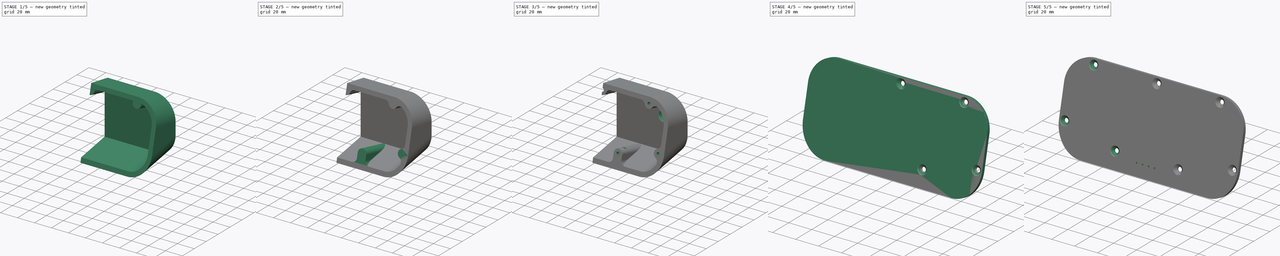
[diagram: build sequence overview — one tinted view per stage of 5, left to right]
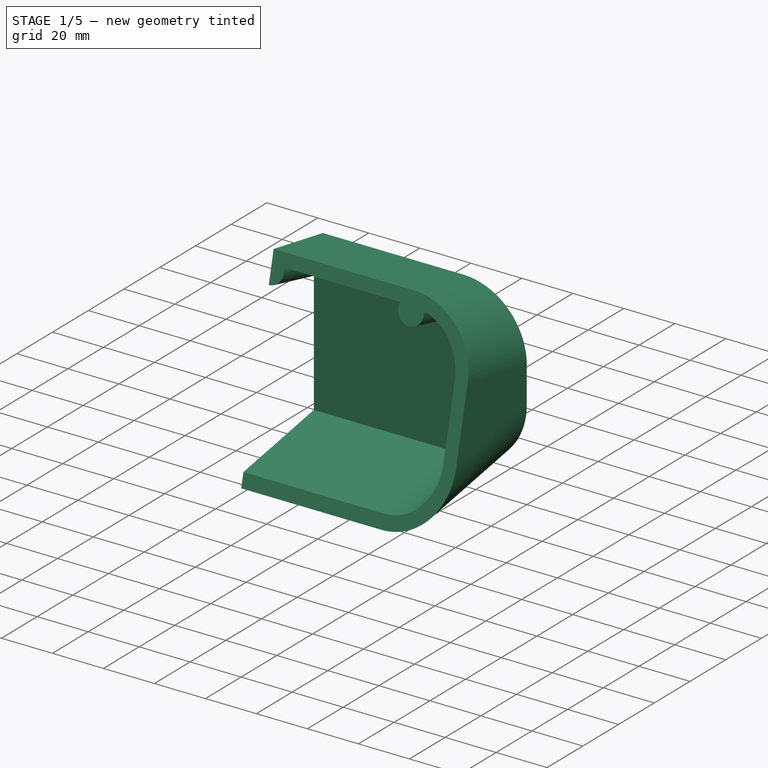
[diagram: stage 1 of 5 — iso view after this stage's code; geometry added in this stage tinted green]
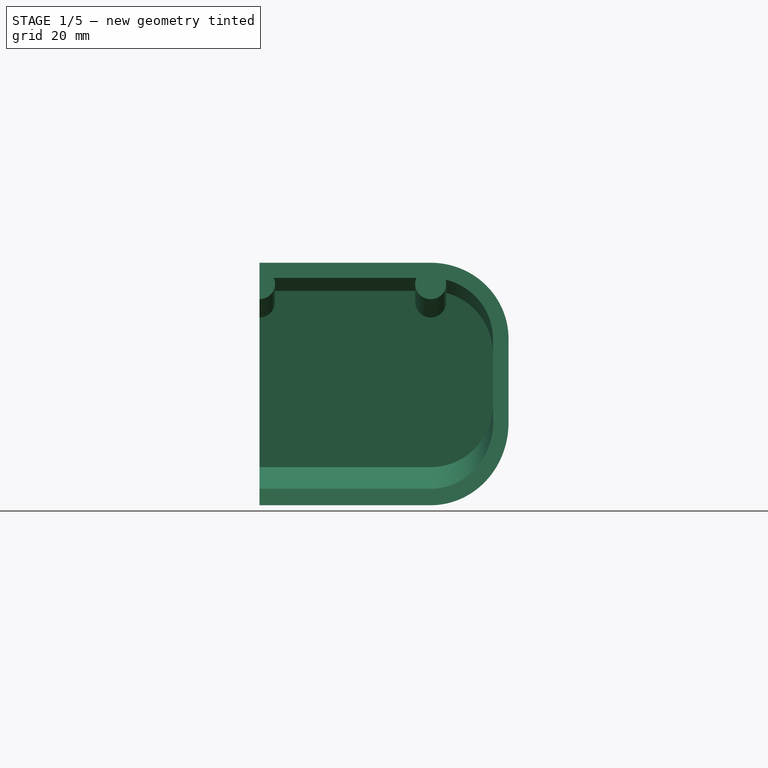
[diagram: stage 1 of 5 — front view after this stage's code; geometry added in this stage tinted green]
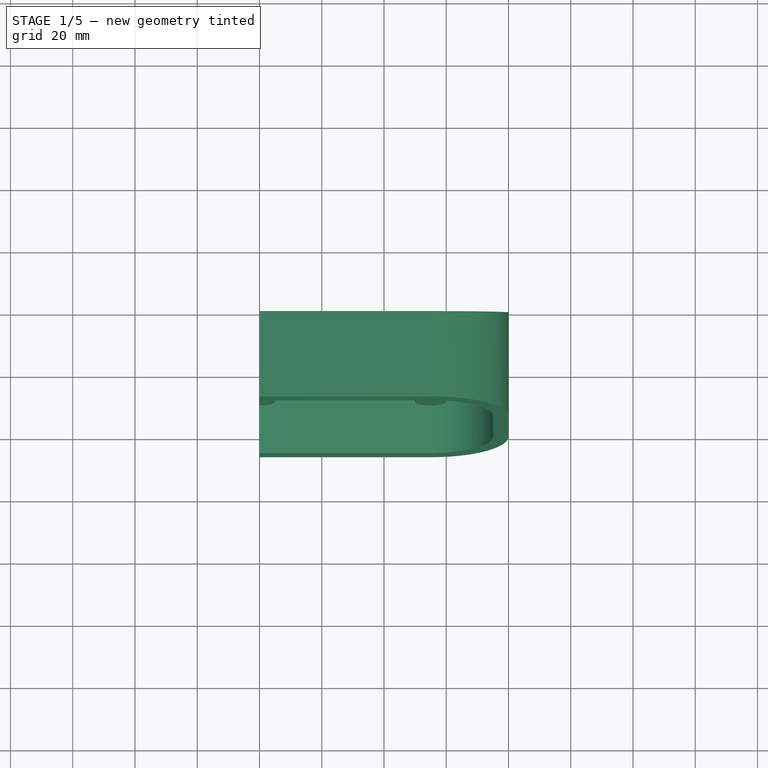
[diagram: stage 1 of 5 — top view after this stage's code; geometry added in this stage tinted green]
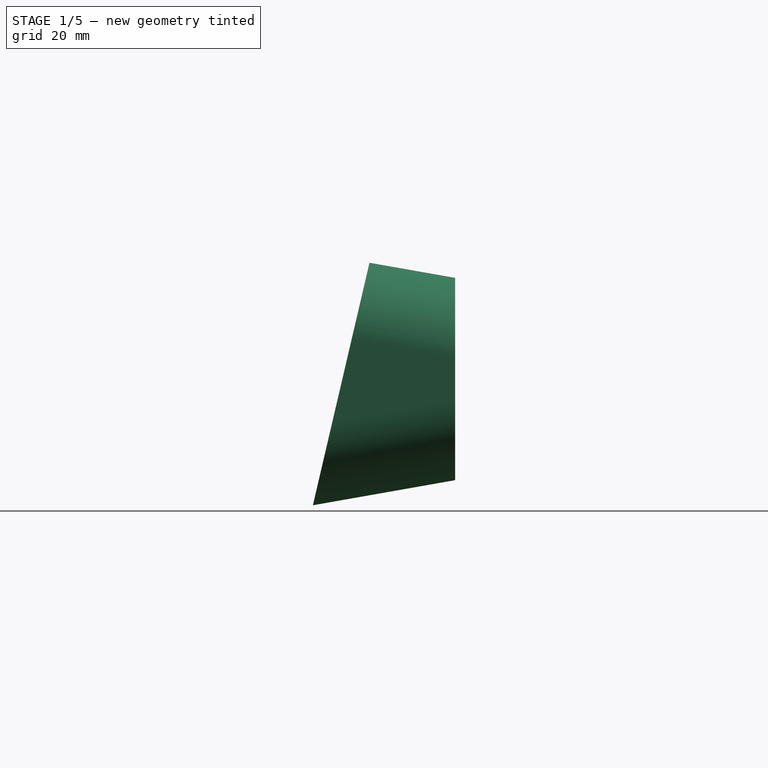
[diagram: stage 1 of 5 — right view after this stage's code; geometry added in this stage tinted green]
FCSTD DOCUMENT  (FreeCAD 0.21R33668 +7 (Git))
Label: wall-mount
License: All rights reserved
LicenseURL: http://en.wikipedia.org/wiki/All_rights_reserved
objects: Sketcher::SketchObject×11, PartDesign::Pad×6, PartDesign::Pocket×5, PartDesign::SubShapeBinder×4, PartDesign::Hole×3, PartDesign::Fillet×2, PartDesign::Mirrored×2, PartDesign::Body×2, PartDesign::Thickness×1
note: 53 computed .brp shape members not serialized (recipe doc carries the construction recipe); baked Part::Feature solids carry a one-line shape summary decoded from their .brp

FEATURE [Sketcher::SketchObject] Sketch
  FullyConstrained = true
  MapMode = 5
  Placement = pos=(0,0,0) rot=(0.57735,0.57735,0.57735;2.0944rad)
  Support = -> [YZ_Plane]
  sketch-geometry (6):
    g0: LineSegment StartX=0 StartY=-3.62973 StartZ=0 EndX=0 EndY=61.3703 EndZ=0
    g1: LineSegment StartX=0 StartY=-3.62973 StartZ=0 EndX=-45.6885 EndY=-11.6859 EndZ=0
    g2: LineSegment StartX=-45.6885 StartY=-11.6859 StartZ=0 EndX=-27.5033 EndY=66.2198 EndZ=0
    g3: LineSegment StartX=-27.5033 StartY=66.2198 StartZ=0 EndX=0 EndY=61.3703 EndZ=0
    g4: LineSegment StartX=-48.6436 StartY=-24.3455 StartZ=0 EndX=-10 EndY=141.204 EndZ=0
    g5: GeomPoint X=-42.9607 Y=0 Z=0
  constraints (19):
    c: PointOnObject(g0,g-2)
    c: PointOnObject(g0,g-2)
    c: Coincident(g1,g0)
    c: Coincident(g2,g1)
    c: Coincident(g3,g2)
    c: Coincident(g3,g0)
    c: Distance(g2) = 80
    c: Distance(g0) = 65
    c: Angle(g0,g1) = 1.74533
    c: Angle(g3,g0) = 1.74533
    c: PointOnObject(g1,g4)
    c: PointOnObject(g2,g4)
    c: PointOnObject(g5,g4)
    c: PointOnObject(g5,g-1)
    c: DistanceX(g4,g-1) = 10
    c: Distance(g5,g4) = 25
    c: Distance(g1,g5) = 12
    c: Distance(g4,g4) = 170
    c: Angle(g2,g-2) = 0.22932
FEATURE [PartDesign::Pad] Pad
  Direction = (1,-2e-16,3e-16)
  Length = 80
  Length2 = 10
  Placement = pos=(0,0,0) rot=(0.57735,0.57735,0.57735;2.0944rad)
  Profile = -> Sketch
  ReferenceAxis = -> Sketch [N_Axis]
  Type = 0
FEATURE [PartDesign::Fillet] Fillet
  Base = -> Pad [Edge12,Edge7]
  BaseFeature = -> Pad
  Placement = pos=(0,0,0) rot=(0.57735,0.57735,0.57735;2.0944rad)
  Radius = 25
  SupportTransform = false
  UseAllEdges = false
FEATURE [PartDesign::Thickness] Thickness
  Base = -> Fillet [Face4,Face8]
  BaseFeature = -> Fillet
  Intersection = false
  Join = 0
  Mode = 0
  Reversed = true
  SupportTransform = false
  Value = 5
FEATURE [PartDesign::Pad] Pad001
  BaseFeature = -> Thickness
  Direction = (-5e-16,-0.973821,0.227315)
  Length = 10
  Length2 = 10
  Profile = -> Sketch001
  ReferenceAxis = -> Sketch001 [N_Axis]
  Refine = true
  Reversed = true
  Type = 3
  UpToFace = -> Thickness [Face9]
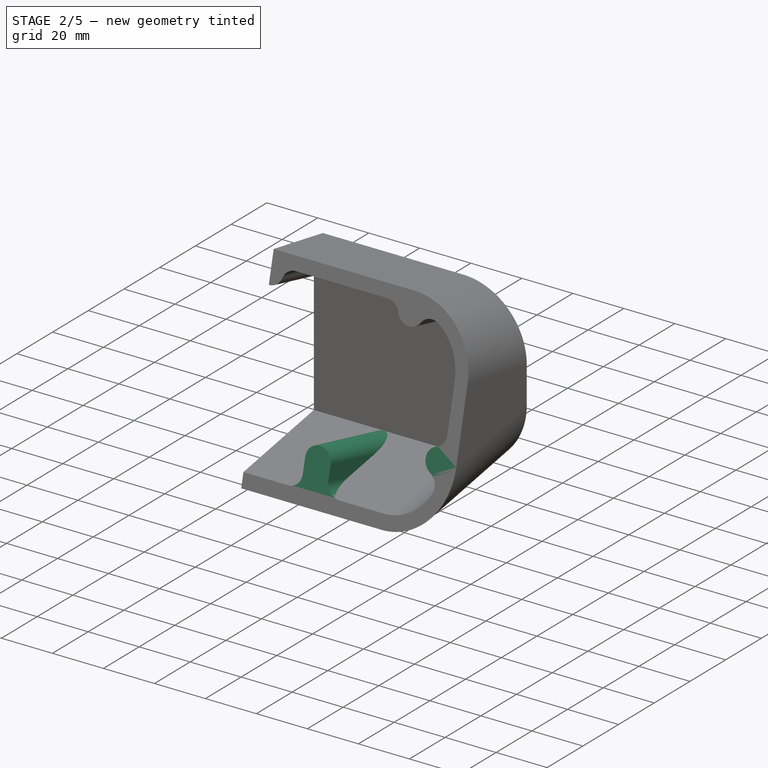
[diagram: stage 2 of 5 — iso view after this stage's code; geometry added in this stage tinted green]
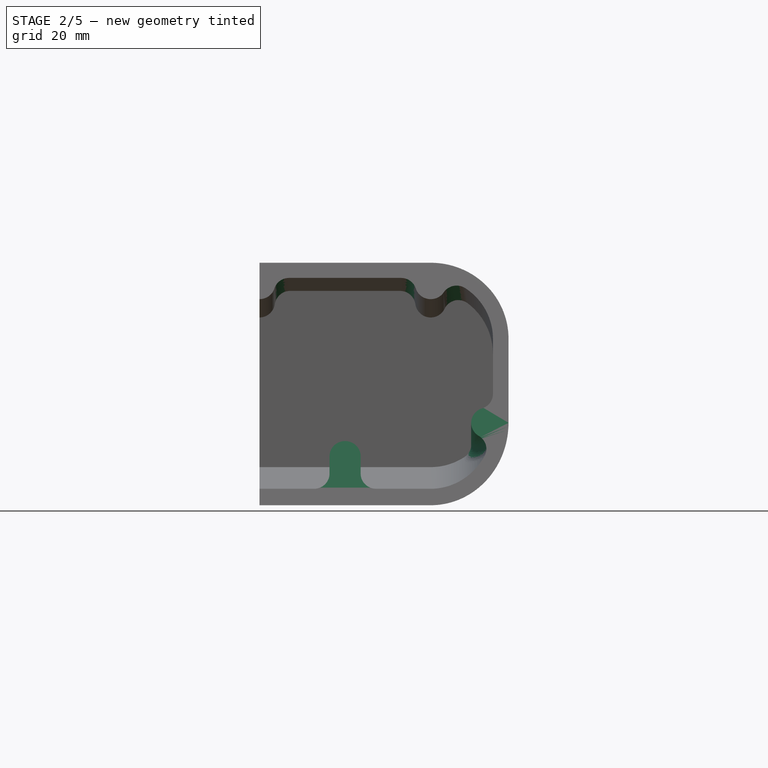
[diagram: stage 2 of 5 — front view after this stage's code; geometry added in this stage tinted green]
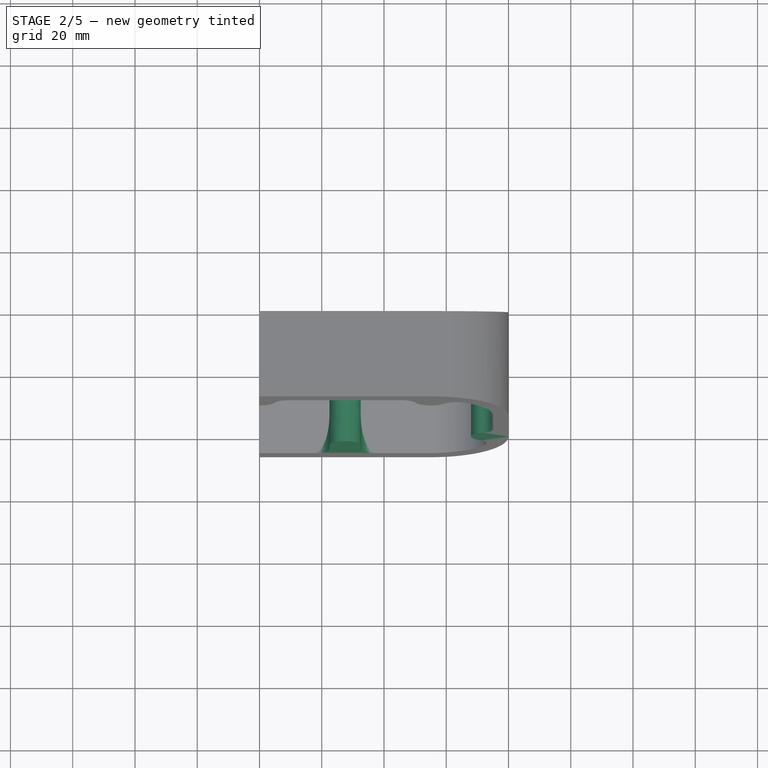
[diagram: stage 2 of 5 — top view after this stage's code; geometry added in this stage tinted green]
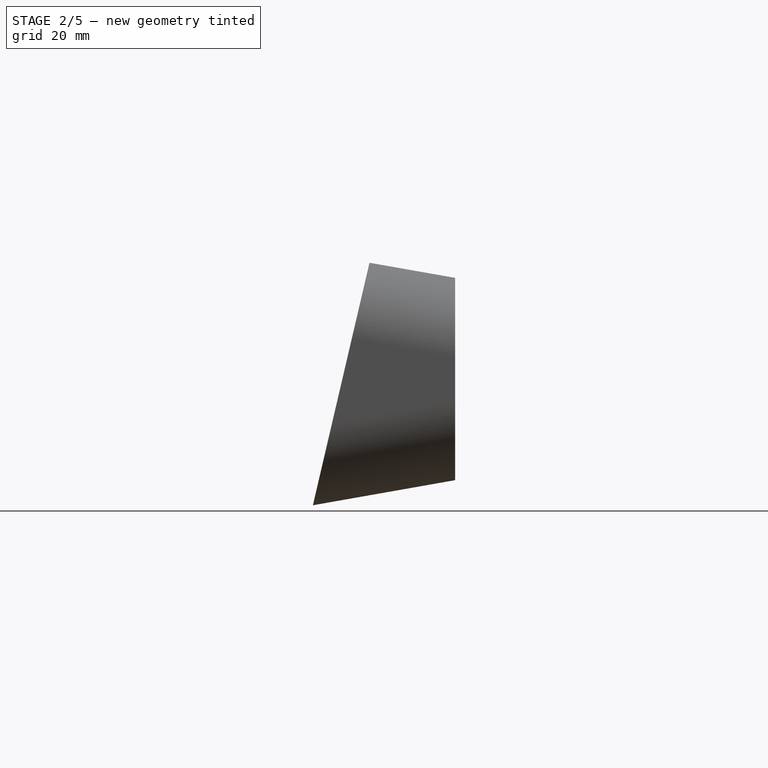
[diagram: stage 2 of 5 — right view after this stage's code; geometry added in this stage tinted green]
FEATURE [Sketcher::SketchObject] Sketch002
  ExternalGeometry = -> [Pad001]
  FullyConstrained = true
  MapMode = 5
  Placement = pos=(-1.9e-14,-40.7409,9.50999) rot=(1,0,0;1.34148rad)
  sketch-geometry (7):
    g0: GeomPoint X=27.5 Y=-16.3282 Z=0
    g1: ArcOfCircle CenterX=27.5 CenterY=-5.58562 CenterZ=0 NormalX=0 NormalY=0 NormalZ=1 AngleXU=0 Radius=5 StartAngle=0 EndAngle=3.14159
    g2: LineSegment StartX=22.5 StartY=-5.58562 StartZ=0 EndX=22.5 EndY=-11.3282 EndZ=0
    g3: LineSegment StartX=32.5 StartY=-11.3282 StartZ=0 EndX=32.5 EndY=-5.58562 EndZ=0
    g4: ArcOfCircle CenterX=37.5 CenterY=-11.3282 CenterZ=0 NormalX=0 NormalY=0 NormalZ=1 AngleXU=0 Radius=5 StartAngle=3.14159 EndAngle=4.71239
    g5: ArcOfCircle CenterX=17.5 CenterY=-11.3282 CenterZ=0 NormalX=0 NormalY=0 NormalZ=1 AngleXU=0 Radius=5 StartAngle=4.71239 EndAngle=6.28319
    g6: LineSegment StartX=17.5 StartY=-16.3282 StartZ=0 EndX=37.5 EndY=-16.3282 EndZ=0
  constraints (16):
    c: Symmetric(g-3,g-3,g0)
    c: Vertical(g2)
    c: Vertical(g3)
    c: Vertical(g0,g1)
    c: Tangent(g3,g1) = -1.5708
    c: Tangent(g2,g1) = -1.5708
    c: Tangent(g2,g5) = 1.5708
    c: Tangent(g3,g4) = 1.5708
    c: Tangent(g5,g-3) = 1.5708
    c: Tangent(g4,g-3) = 1.5708
    c: Coincident(g6,g5)
    c: Tangent(g1,g-4)
    c: Equal(g-5,g1)
    c: Equal(g5,g4)
    c: Radius(g5) = 5
    c: Coincident(g4,g6)
FEATURE [Sketcher::SketchObject] Sketch008
  ExternalGeometry = -> [Binder,Pad001]
  FullyConstrained = true
  MapMode = 5
  Placement = pos=(-1.97e-14,-40.7409,9.50999) rot=(1,0,0;1.34148rad)
  Support = -> [Pad001]
  sketch-geometry (1):
    g0: Circle CenterX=73 CenterY=5.42146 CenterZ=0 NormalX=0 NormalY=0 NormalZ=1 AngleXU=0 Radius=5
  constraints (2):
    c: Equal(g-4,g0)
    c: Coincident(g-3,g0)
FEATURE [PartDesign::Pad] Pad006
  BaseFeature = -> Pad001
  Direction = (-5e-16,-0.973821,0.227315)
  Length = 20
  Length2 = 10
  Profile = -> Sketch008
  ReferenceAxis = -> Sketch008 [N_Axis]
  Refine = true
  Reversed = true
  Type = 0
FEATURE [PartDesign::Pad] Pad007
  BaseFeature = -> Pad006
  Direction = (0,0.973821,-0.227315)
  Length = 10
  Length2 = 10
  Profile = -> Pad006 [Face6]
  Type = 3
  UpToFace = -> Pad006 [Face4]
FEATURE [PartDesign::Pad] Pad002
  BaseFeature = -> Pad007
  Direction = (0,-0.973821,0.227315)
  Length = 10
  Length2 = 10
  Profile = -> Sketch002
  ReferenceAxis = -> Sketch002 [N_Axis]
  Refine = true
  Reversed = true
  Type = 2
FEATURE [PartDesign::Fillet] Fillet002
  Base = -> Pad002 [Edge36,Edge39,Edge37,Edge26,Edge27,Edge47,Edge48,Edge45]
  BaseFeature = -> Pad002
  Radius = 5
  SupportTransform = false
  UseAllEdges = false
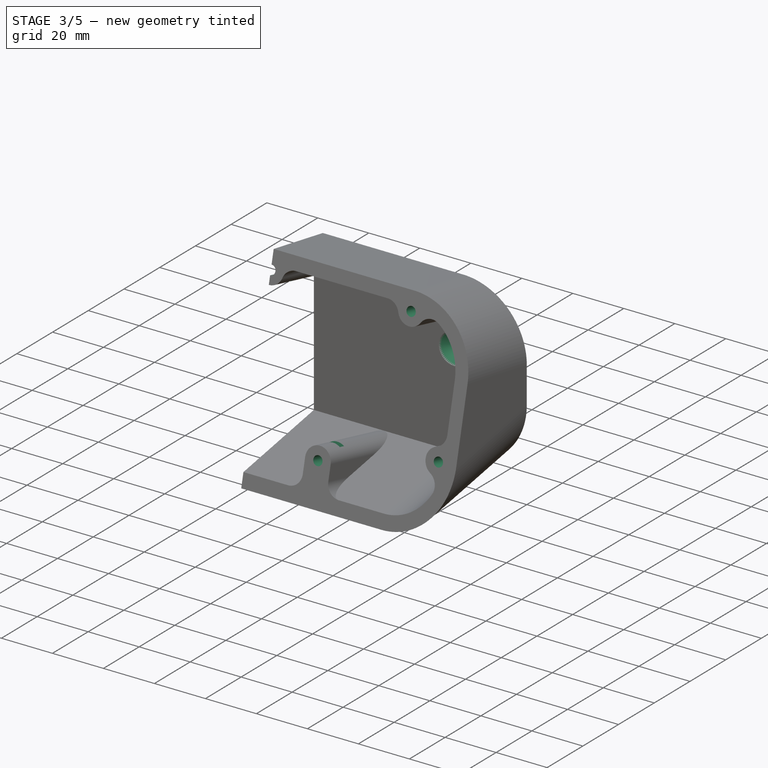
[diagram: stage 3 of 5 — iso view after this stage's code; geometry added in this stage tinted green]
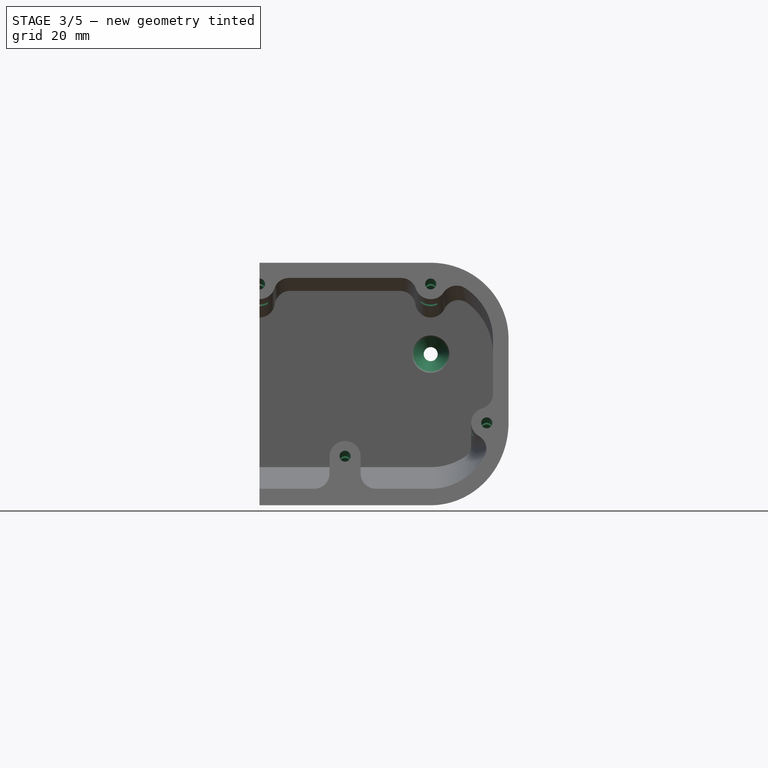
[diagram: stage 3 of 5 — front view after this stage's code; geometry added in this stage tinted green]
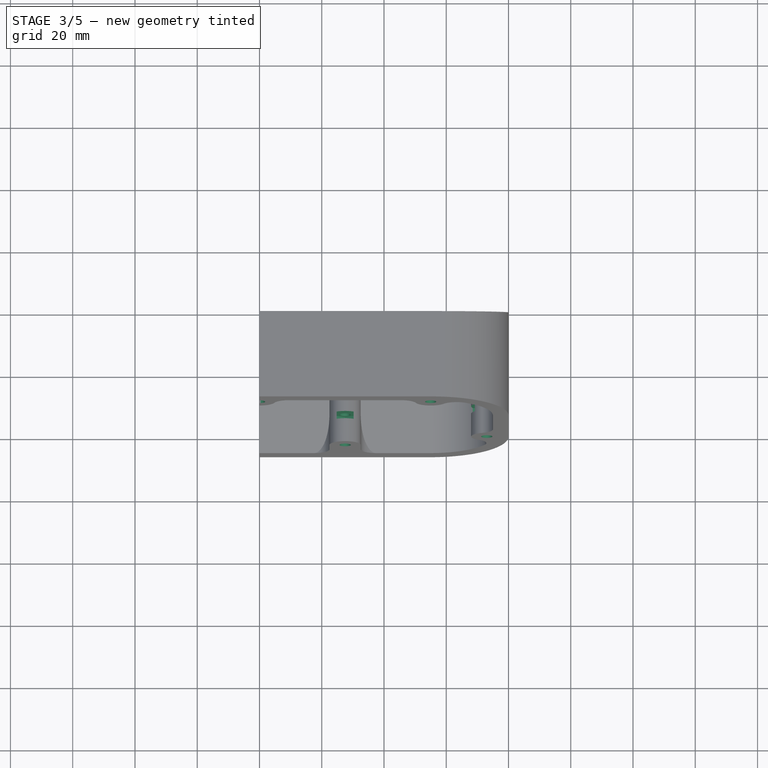
[diagram: stage 3 of 5 — top view after this stage's code; geometry added in this stage tinted green]
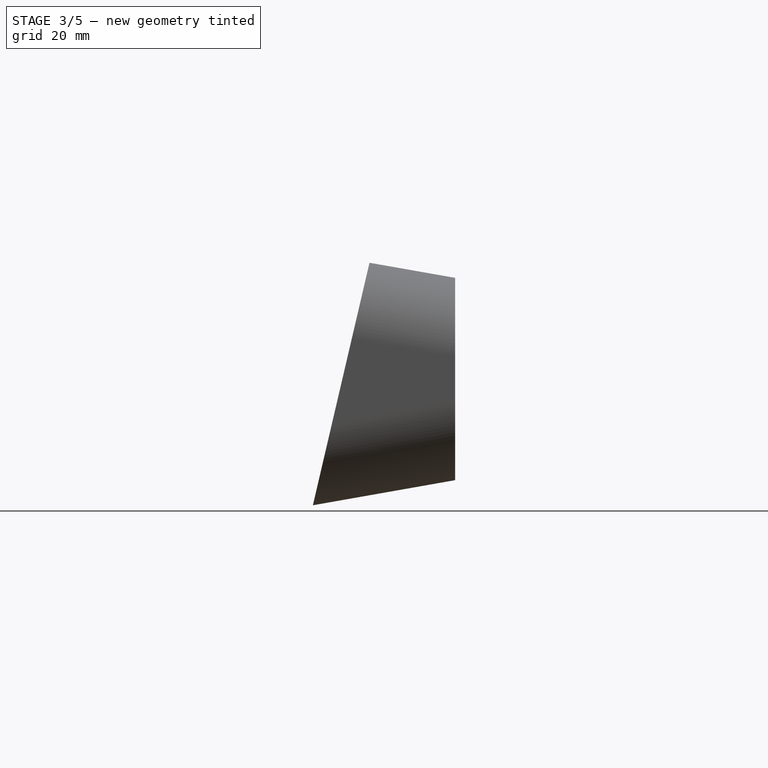
[diagram: stage 3 of 5 — right view after this stage's code; geometry added in this stage tinted green]
FEATURE [Sketcher::SketchObject] Sketch003
  ExternalGeometry = -> [Fillet002]
  FullyConstrained = true
  MapMode = 5
  Placement = pos=(-2.3e-14,-40.7409,9.50999) rot=(1,0,0;1.34148rad)
  Support = -> [Fillet002]
  sketch-geometry (42):
    g0: LineSegment StartX=27.5 StartY=-2.43562 StartZ=0 EndX=24.772 EndY=-4.01062 EndZ=0
    g1: LineSegment StartX=24.772 StartY=-4.01062 StartZ=0 EndX=24.772 EndY=-7.16062 EndZ=0
    g2: LineSegment StartX=24.772 StartY=-7.16062 StartZ=0 EndX=27.5 EndY=-8.73562 EndZ=0
    g3: LineSegment StartX=27.5 StartY=-8.73562 StartZ=0 EndX=30.228 EndY=-7.16062 EndZ=0
    g4: LineSegment StartX=30.228 StartY=-7.16062 StartZ=0 EndX=30.228 EndY=-4.01062 EndZ=0
    g5: LineSegment StartX=30.228 StartY=-4.01062 StartZ=0 EndX=27.5 EndY=-2.43562 EndZ=0
    g6: Circle CenterX=27.5 CenterY=-5.58562 CenterZ=0 NormalX=0 NormalY=0 NormalZ=1 AngleXU=0 Radius=3.15
    g7: LineSegment StartX=69.8716 StartY=5.78995 StartZ=0 EndX=71.1167 EndY=2.89645 EndZ=0
    g8: LineSegment StartX=71.1167 StartY=2.89645 StartZ=0 EndX=74.2451 EndY=2.52796 EndZ=0
    g9: LineSegment StartX=74.2451 StartY=2.52796 StartZ=0 EndX=76.1284 EndY=5.05297 EndZ=0
    g10: LineSegment StartX=76.1284 StartY=5.05297 StartZ=0 EndX=74.8833 EndY=7.94646 EndZ=0
    g11: LineSegment StartX=74.8833 StartY=7.94646 StartZ=0 EndX=71.7549 EndY=8.31495 EndZ=0
    g12: LineSegment StartX=71.7549 StartY=8.31495 StartZ=0 EndX=69.8716 EndY=5.78995 EndZ=0
    g13: Circle CenterX=73 CenterY=5.42146 CenterZ=0 NormalX=0 NormalY=0 NormalZ=1 AngleXU=0 Radius=3.15
    g14: LineSegment StartX=54.5587 StartY=48.1079 StartZ=0 EndX=57.4804 EndY=49.2852 EndZ=0
    g15: LineSegment StartX=57.4804 StartY=49.2852 StartZ=0 EndX=57.9217 EndY=52.4041 EndZ=0
    g16: LineSegment StartX=57.9217 StartY=52.4041 StartZ=0 EndX=55.4413 EndY=54.3458 EndZ=0
    g17: LineSegment StartX=55.4413 StartY=54.3458 StartZ=0 EndX=52.5196 EndY=53.1685 EndZ=0
    g18: LineSegment StartX=52.5196 StartY=53.1685 StartZ=0 EndX=52.0783 EndY=50.0496 EndZ=0
    g19: LineSegment StartX=52.0783 StartY=50.0496 StartZ=0 EndX=54.5587 EndY=48.1079 EndZ=0
    g20: Circle CenterX=55 CenterY=51.2268 CenterZ=0 NormalX=0 NormalY=0 NormalZ=1 AngleXU=0 Radius=3.15
    g21: LineSegment StartX=0 StartY=48.0768 StartZ=0 EndX=2.72798 EndY=49.6518 EndZ=0
    g22: LineSegment StartX=2.72798 StartY=49.6518 StartZ=0 EndX=2.72798 EndY=52.8018 EndZ=0
    g23: LineSegment StartX=2.72798 StartY=52.8018 StartZ=0 EndX=1.489e-12 EndY=54.3768 EndZ=0
    g24: LineSegment StartX=1.4892e-12 StartY=54.3768 StartZ=0 EndX=-2.72798 EndY=52.8018 EndZ=0
    g25: LineSegment StartX=-2.72798 StartY=52.8018 StartZ=0 EndX=-2.72798 EndY=49.6518 EndZ=0
    g26: LineSegment StartX=-2.72798 StartY=49.6518 StartZ=0 EndX=0 EndY=48.0768 EndZ=0
    g27: Circle CenterX=-2.16e-14 CenterY=51.2268 CenterZ=0 NormalX=0 NormalY=0 NormalZ=1 AngleXU=0 Radius=3.15
    g28: LineSegment StartX=55 StartY=51.2268 StartZ=0 EndX=54.6979 EndY=49.0917 EndZ=0
    g29: LineSegment StartX=73 StartY=5.42146 StartZ=0 EndX=70.9664 EndY=5.66099 EndZ=0
    g30: LineSegment StartX=52.5196 StartY=53.1685 StartZ=0 EndX=51.1186 EndY=43.2671 EndZ=0
    g31: LineSegment StartX=51.1186 StartY=43.2671 StartZ=0 EndX=56.5207 EndY=42.5027 EndZ=0
    g32: LineSegment StartX=56.5207 StartY=42.5027 StartZ=0 EndX=57.9217 EndY=52.4041 EndZ=0
    g33: LineSegment StartX=1.4892e-12 StartY=54.3768 StartZ=0 EndX=0 EndY=42.8018 EndZ=0
    g34: LineSegment StartX=0 StartY=42.8018 StartZ=0 EndX=2.72798 EndY=42.8018 EndZ=0
    g35: LineSegment StartX=2.72798 StartY=42.8018 StartZ=0 EndX=2.72798 EndY=52.8018 EndZ=0
    g36: LineSegment StartX=74.8833 StartY=7.94646 StartZ=0 EndX=64.952 EndY=9.11627 EndZ=0
    g37: LineSegment StartX=64.952 StartY=9.11627 StartZ=0 EndX=64.3137 EndY=3.69777 EndZ=0
    g38: LineSegment StartX=64.3137 StartY=3.69777 StartZ=0 EndX=74.2451 EndY=2.52796 EndZ=0
    g39: LineSegment StartX=24.772 StartY=-7.16062 StartZ=0 EndX=24.772 EndY=2.83938 EndZ=0
    g40: LineSegment StartX=24.772 StartY=2.83938 StartZ=0 EndX=30.228 EndY=2.83938 EndZ=0
    g41: LineSegment StartX=30.228 StartY=2.83938 StartZ=0 EndX=30.228 EndY=-7.16062 EndZ=0
  constraints (100):
    c: Coincident(g0,g1)
    c: Coincident(g1,g2)
    c: Coincident(g2,g3)
    c: Coincident(g3,g4)
    c: Coincident(g4,g5)
    c: Coincident(g5,g0)
    c: Equal(g0, g1-g5) x5
    c: PointOnObject(g0,g6)
    c: PointOnObject(g1,g6)
    c: PointOnObject(g2,g6)
    c: PointOnObject(g3,g6)
    c: PointOnObject(g4,g6)
    c: PointOnObject(g5,g6)
    c: Coincident(g7,g8)
    c: Coincident(g8,g9)
    c: Coincident(g9,g10)
    c: Coincident(g10,g11)
    c: Coincident(g11,g12)
    c: Coincident(g12,g7)
    c: Equal(g7, g8-g12) x5
    c: PointOnObject(g7,g13)
    c: PointOnObject(g8,g13)
    c: PointOnObject(g9,g13)
    c: PointOnObject(g10,g13)
    c: PointOnObject(g11,g13)
    c: PointOnObject(g12,g13)
    c: Coincident(g14,g15)
    c: Coincident(g15,g16)
    c: Coincident(g16,g17)
    c: Coincident(g17,g18)
    c: Coincident(g18,g19)
    c: Coincident(g19,g14)
    c: Equal(g14, g15-g19) x5
    c: PointOnObject(g14,g20)
    c: PointOnObject(g15,g20)
    c: PointOnObject(g16,g20)
    c: PointOnObject(g17,g20)
    c: PointOnObject(g18,g20)
    c: PointOnObject(g19,g20)
    c: Coincident(g21,g22)
    c: Coincident(g22,g23)
    c: Coincident(g23,g24)
    c: Coincident(g24,g25)
    c: Coincident(g25,g26)
    c: Coincident(g26,g21)
    c: Equal(g21, g22-g26) x5
    c: PointOnObject(g21,g27)
    c: PointOnObject(g22,g27)
    c: PointOnObject(g23,g27)
    c: PointOnObject(g24,g27)
    c: PointOnObject(g25,g27)
    c: PointOnObject(g26,g27)
    c: PointOnObject(g26,g-2)
    c: Equal(g20,g27)
    c: Equal(g20,g13)
    c: Equal(g20,g6)
    c: Diameter(g20) = 6.3
    c: Coincident(g28,g20)
    c: PointOnObject(g14,g28)
    c: Coincident(g29,g13)
    c: PointOnObject(g7,g29)
    c: Vertical(g6,g0)
    c: Coincident(g30,g17)
    c: Coincident(g31,g30)
    c: Coincident(g32,g31)
    c: Coincident(g32,g16)
    c: PointOnObject(g14,g32)
    c: PointOnObject(g18,g30)
    c: Perpendicular(g32,g31)
    c: Coincident(g33,g23)
    c: PointOnObject(g33,g-2)
    c: Coincident(g34,g33)
    c: Coincident(g35,g34)
    c: Coincident(g35,g23)
    c: PointOnObject(g21,g35)
    c: Perpendicular(g35,g34)
    c: Coincident(g36,g10)
    c: Coincident(g37,g36)
    c: Coincident(g38,g37)
    c: Coincident(g38,g9)
    c: PointOnObject(g11,g36)
    c: PointOnObject(g7,g38)
    c: Perpendicular(g38,g37)
    c: Coincident(g39,g2)
    c: Coincident(g40,g39)
    c: Coincident(g41,g40)
    c: Coincident(g41,g3)
    c: PointOnObject(g4,g41)
    c: PointOnObject(g0,g39)
    c: Perpendicular(g40,g39)
    c: Equal(g41,g36)
    c: Equal(g36,g32)
    c: Equal(g32,g35)
    c: Distance(g35) = 10
    c: Coincident(g6,g-6)
    c: Coincident(g13,g-5)
    c: Symmetric(g-5,g-5,g29)
    c: Coincident(g20,g-4)
    c: Symmetric(g-4,g-4,g28)
    c: Coincident(g27,g-3)
FEATURE [PartDesign::Pocket] Pocket
  BaseFeature = -> Fillet002
  Direction = (5e-16,0.973821,-0.227315)
  Length = 10
  Length2 = -7.6
  Profile = -> Sketch003
  ReferenceAxis = -> Sketch003 [N_Axis]
  Type = 4
FEATURE [Sketcher::SketchObject] Sketch004
  ExternalGeometry = -> [Pocket]
  FullyConstrained = true
  MapMode = 5
  Placement = pos=(-2.3e-14,-40.7409,9.50999) rot=(1,0,0;1.34148rad)
  Support = -> [Pocket]
  sketch-geometry (4):
    g0: Circle CenterX=-2.16e-14 CenterY=51.2268 CenterZ=0 NormalX=0 NormalY=0 NormalZ=1 AngleXU=0 Radius=1.7
    g1: Circle CenterX=55 CenterY=51.2268 CenterZ=0 NormalX=0 NormalY=0 NormalZ=1 AngleXU=0 Radius=1.7
    g2: Circle CenterX=73 CenterY=5.42146 CenterZ=0 NormalX=0 NormalY=0 NormalZ=1 AngleXU=0 Radius=1.7
    g3: Circle CenterX=27.5 CenterY=-5.58562 CenterZ=0 NormalX=0 NormalY=0 NormalZ=1 AngleXU=0 Radius=1.7
  constraints (8):
    c: Coincident(g3,g-7)
    c: Coincident(g1,g-5)
    c: Coincident(g0,g-4)
    c: Coincident(g-6,g2)
    c: Equal(g3,g2)
    c: Equal(g3,g1)
    c: Equal(g3,g0)
    c: Diameter(g3) = 3.4
FEATURE [PartDesign::Hole] Hole
  BaseFeature = -> Pocket
  CustomThreadClearance = 0
  Depth = 25
  DepthType = 0
  Diameter = 3.6
  DrillForDepth = false
  DrillPoint = 1
  DrillPointAngle = 118
  HoleCutCountersinkAngle = 90
  HoleCutCustomValues = false
  HoleCutDepth = 0
  HoleCutDiameter = 6.1
  HoleCutType = 0
  ModelThread = false
  Profile = -> Sketch004
  Tapered = false
  TaperedAngle = 90
  ThreadClass = 0
  ThreadDepth = 25
  ThreadDepthType = 0
  ThreadDirection = 0
  ThreadFit = 2
  ThreadSize = 9
  ThreadType = 1
  Threaded = false
  UseCustomThreadClearance = false
FEATURE [Sketcher::SketchObject] Sketch005
  ExternalGeometry = -> [Hole]
  FullyConstrained = true
  MapMode = 5
  Placement = pos=(-2.2e-15,-5,1.1e-15) rot=(1,0,0;1.5708rad)
  Support = -> [Hole]
  sketch-geometry (1):
    g0: Circle CenterX=55 CenterY=36.8662 CenterZ=0 NormalX=0 NormalY=0 NormalZ=1 AngleXU=0 Radius=6
  constraints (2):
    c: Coincident(g0,g-3)
    c: Diameter(g0) = 12
FEATURE [PartDesign::Hole] Hole001
  BaseFeature = -> Hole
  CustomThreadClearance = 0
  Depth = 243.716
  DepthType = 1
  Diameter = 4.5
  DrillForDepth = false
  DrillPoint = 1
  DrillPointAngle = 118
  HoleCutCountersinkAngle = 90
  HoleCutCustomValues = false
  HoleCutDepth = 0
  HoleCutDiameter = 12
  HoleCutType = 2
  ModelThread = false
  Profile = -> Sketch005
  Tapered = false
  TaperedAngle = 90
  ThreadClass = 0
  ThreadDepth = 243.716
  ThreadDepthType = 0
  ThreadDirection = 0
  ThreadFit = 0
  ThreadSize = 11
  ThreadType = 1
  Threaded = false
  UseCustomThreadClearance = false
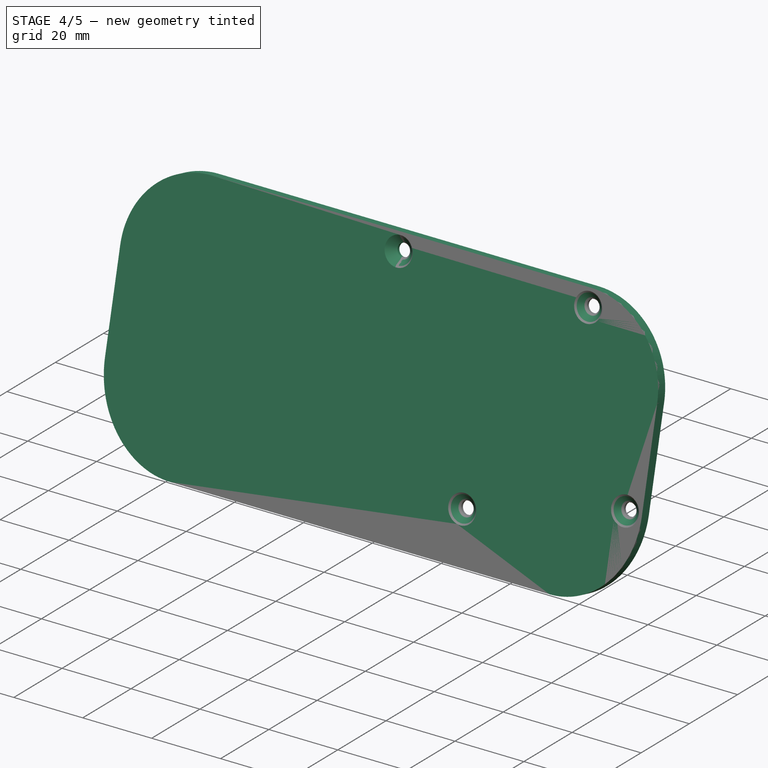
[diagram: stage 4 of 5 — iso view after this stage's code; geometry added in this stage tinted green]
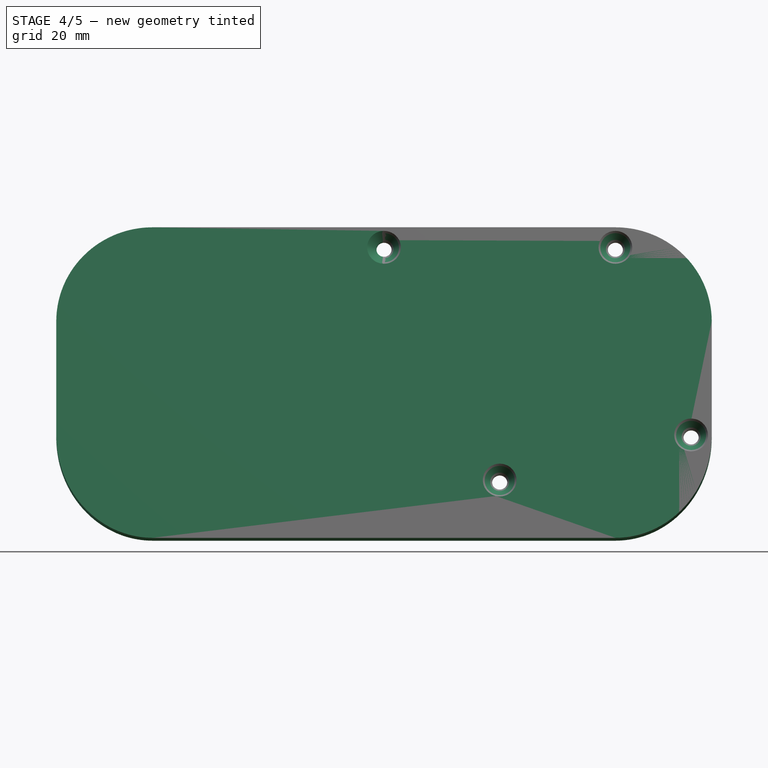
[diagram: stage 4 of 5 — front view after this stage's code; geometry added in this stage tinted green]
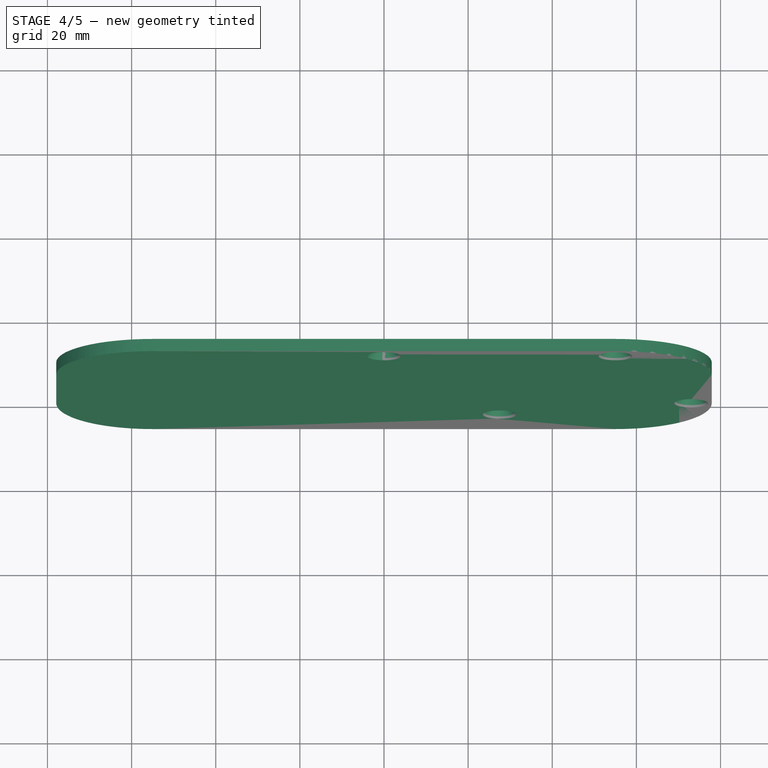
[diagram: stage 4 of 5 — top view after this stage's code; geometry added in this stage tinted green]
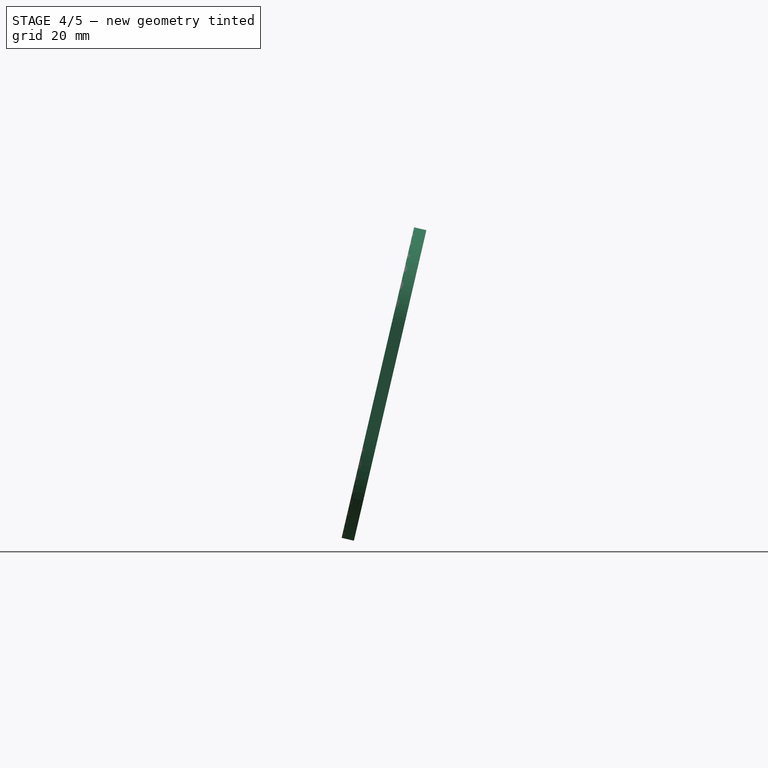
[diagram: stage 4 of 5 — right view after this stage's code; geometry added in this stage tinted green]
FEATURE [PartDesign::SubShapeBinder] Binder
  BindCopyOnChange = 0
  BindMode = 0
  ClaimChildren = false
  Context = -> Body [Binder.]
  Fuse = false
  MakeFace = true
  Offset = -2
  OffsetFill = false
  OffsetIntersection = false
  OffsetJoinType = 0
  OffsetOpenResult = false
  PartialLoad = false
  Relative = true
  Support = -> [Thickness[Edge27,Edge26,Edge25,Edge24,Edge23]]
  _Version = 2
FEATURE [Sketcher::SketchObject] Sketch001
  ExternalGeometry = -> [Binder]
  FullyConstrained = true
  MapMode = 5
  Placement = pos=(-2.09e-14,-40.7409,9.50999) rot=(1,0,0;1.34148rad)
  Support = -> [Thickness]
  sketch-geometry (3):
    g0: ArcOfCircle CenterX=-2.03e-14 CenterY=51.2268 CenterZ=0 NormalX=0 NormalY=0 NormalZ=1 AngleXU=0 Radius=5 StartAngle=4.71239 EndAngle=7.85398
    g1: LineSegment StartX=1e-15 StartY=46.2268 StartZ=0 EndX=-1e-15 EndY=56.2268 EndZ=0
    g2: Circle CenterX=55 CenterY=51.2268 CenterZ=0 NormalX=0 NormalY=0 NormalZ=1 AngleXU=0 Radius=5
  constraints (8):
    c: Coincident(g0,g-3)
    c: PointOnObject(g0,g-2)
    c: PointOnObject(g0,g-2)
    c: Coincident(g1,g0)
    c: Coincident(g1,g0)
    c: Coincident(g2,g-3)
    c: Equal(g0,g2)
    c: Diameter(g0) = 10
FEATURE [PartDesign::SubShapeBinder] Binder001
  BindCopyOnChange = 0
  BindMode = 0
  ClaimChildren = false
  Context = -> Body [Binder001.]
  Fuse = false
  MakeFace = true
  Offset = -1.9
  OffsetFill = false
  OffsetIntersection = false
  OffsetJoinType = 0
  OffsetOpenResult = false
  PartialLoad = false
  Relative = true
  Support = -> [Mirrored[Edge10,Edge6,Edge1,Edge11,Edge15,Edge14,Edge13,Edge12]]
  _Version = 2
FEATURE [PartDesign::SubShapeBinder] Binder002
  BindCopyOnChange = 0
  BindMode = 0
  ClaimChildren = false
  Context = -> Body001 [Binder002.]
  Fuse = false
  MakeFace = true
  Offset = -0.2
  OffsetFill = false
  OffsetIntersection = false
  OffsetJoinType = 0
  OffsetOpenResult = false
  PartialLoad = false
  Placement = pos=(0,-0.1,0) rot=(0,0,1;0rad)
  Relative = true
  Support = -> [Body[Pocket001.Edge50,Pocket001.Edge37,Pocket001.Edge49,Pocket001.Edge47,Pocket001.Edge45,Pocket001.Edge43,Pocket001.Edge41,Pocket001.Edge39]]
  _Version = 2
FEATURE [PartDesign::Pad] Pad003
  Direction = (2e-16,0.973821,-0.227315)
  Length = 3
  Length2 = 10
  Placement = pos=(0,-0.1,0) rot=(0,0,1;0rad)
  Profile = -> Binder002
  Reversed = true
  Type = 0
FEATURE [PartDesign::Mirrored] Mirrored
  BaseFeature = -> Hole001
  MirrorPlane = -> Hole001 [Face4]
  Originals = -> [Pad,Fillet,Thickness,Pad001,Pad006,Pad007,Pad002,Fillet002,Pocket,Hole,Hole001]
  Refine = true
FEATURE [PartDesign::Pocket] Pocket001
  BaseFeature = -> Mirrored
  Direction = (-2e-16,-0.973821,0.227315)
  Length = 3.1
  Length2 = 5
  Profile = -> Binder001
  Reversed = true
  Type = 0
FEATURE [PartDesign::Body] Body  label="Base"
  Group = -> [Sketch,Pad,Fillet,Thickness,Binder,Sketch001,Pad001,Sketch002,Sketch008,Pad006,Pad007,Pad002,Fillet002,Sketch003,Pocket,Sketch004,Hole,Sketch005,Hole001,Mirrored,Binder001,Pocket001]
  Origin = -> Origin
  Tip = -> Pocket001
FEATURE [PartDesign::SubShapeBinder] Binder004
  BindCopyOnChange = 0
  BindMode = 0
  ClaimChildren = false
  Context = -> Body001 [Binder004.]
  Fuse = false
  MakeFace = true
  OffsetFill = false
  OffsetIntersection = false
  OffsetJoinType = 0
  OffsetOpenResult = false
  PartialLoad = false
  Relative = true
  Support = -> [Body[Pocket001.Edge58,Pocket001.Edge96,Pocket001.Edge97,Pocket001.Edge59,Pocket001.Edge10]]
  _Version = 2
FEATURE [Sketcher::SketchObject] Sketch006
  ExternalGeometry = -> [Binder004]
  FullyConstrained = true
  MapMode = 5
  Placement = pos=(-9.6e-15,-40.7435,9.48726) rot=(1,0,0;1.34148rad)
  Support = -> [Pad003]
  sketch-geometry (4):
    g0: Circle CenterX=-1.25e-14 CenterY=51.2496 CenterZ=0 NormalX=0 NormalY=0 NormalZ=1 AngleXU=0 Radius=1.8
    g1: Circle CenterX=55 CenterY=51.2496 CenterZ=0 NormalX=0 NormalY=0 NormalZ=1 AngleXU=0 Radius=1.8
    g2: Circle CenterX=73 CenterY=5.44419 CenterZ=0 NormalX=0 NormalY=0 NormalZ=1 AngleXU=0 Radius=1.8
    g3: Circle CenterX=27.5 CenterY=-5.56289 CenterZ=0 NormalX=0 NormalY=0 NormalZ=1 AngleXU=0 Radius=1.8
  constraints (8):
    c: Coincident(g3,g-5)
    c: Equal(g-5,g3)
    c: Coincident(g1,g-4)
    c: Coincident(g0,g-3)
    c: Equal(g-3,g0)
    c: Equal(g1,g-4)
    c: Coincident(g-6,g2)
    c: Equal(g-6,g2)
FEATURE [PartDesign::Hole] Hole002
  BaseFeature = -> Pad003
  CustomThreadClearance = 0
  Depth = 351.211
  DepthType = 1
  Diameter = 3.6
  DrillForDepth = false
  DrillPoint = 1
  DrillPointAngle = 118
  HoleCutCountersinkAngle = 90
  HoleCutCustomValues = false
  HoleCutDepth = 0
  HoleCutDiameter = 8
  HoleCutType = 2
  ModelThread = false
  Placement = pos=(0,-0.1,0) rot=(0,0,1;0rad)
  Profile = -> Sketch006
  Tapered = false
  TaperedAngle = 90
  ThreadClass = 0
  ThreadDepth = 351.211
  ThreadDepthType = 0
  ThreadDirection = 0
  ThreadFit = 2
  ThreadSize = 9
  ThreadType = 1
  Threaded = false
  UseCustomThreadClearance = false
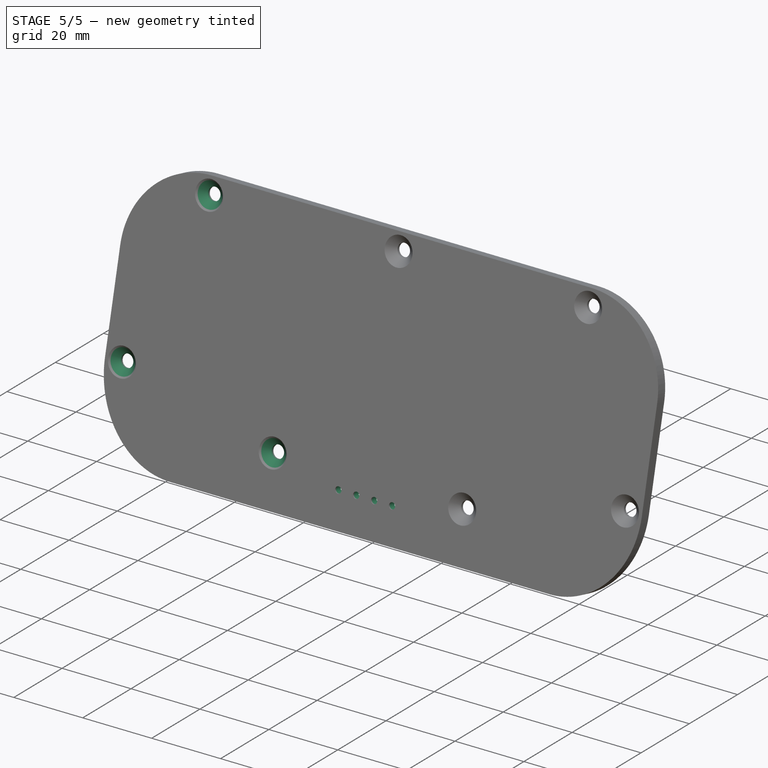
[diagram: stage 5 of 5 — iso view after this stage's code; geometry added in this stage tinted green]
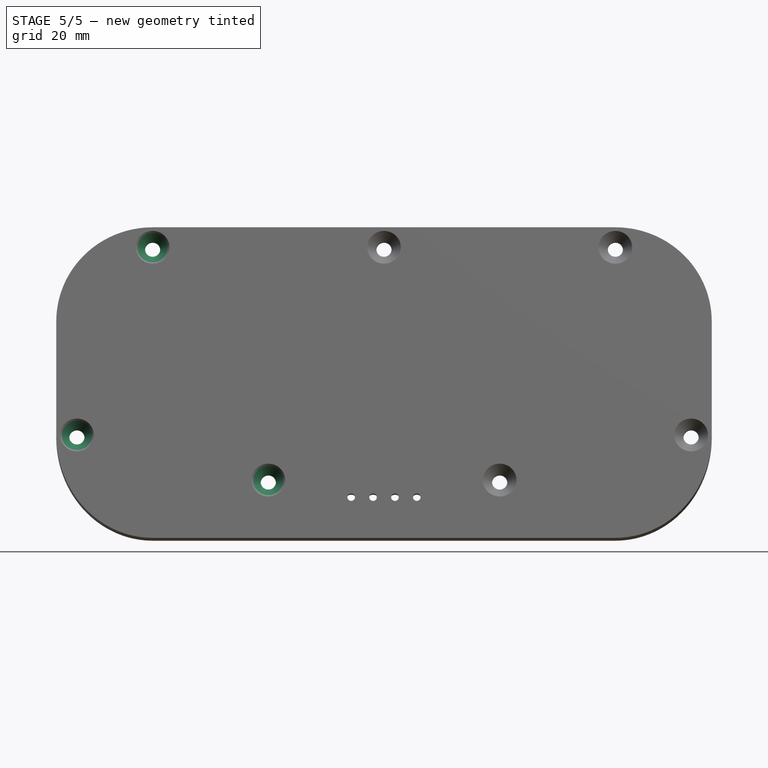
[diagram: stage 5 of 5 — front view after this stage's code; geometry added in this stage tinted green]
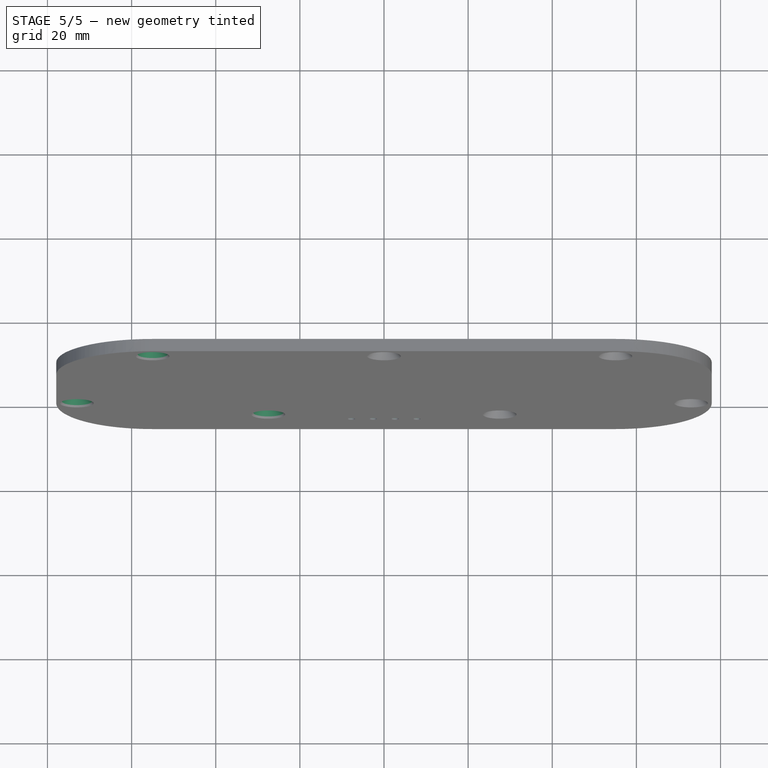
[diagram: stage 5 of 5 — top view after this stage's code; geometry added in this stage tinted green]
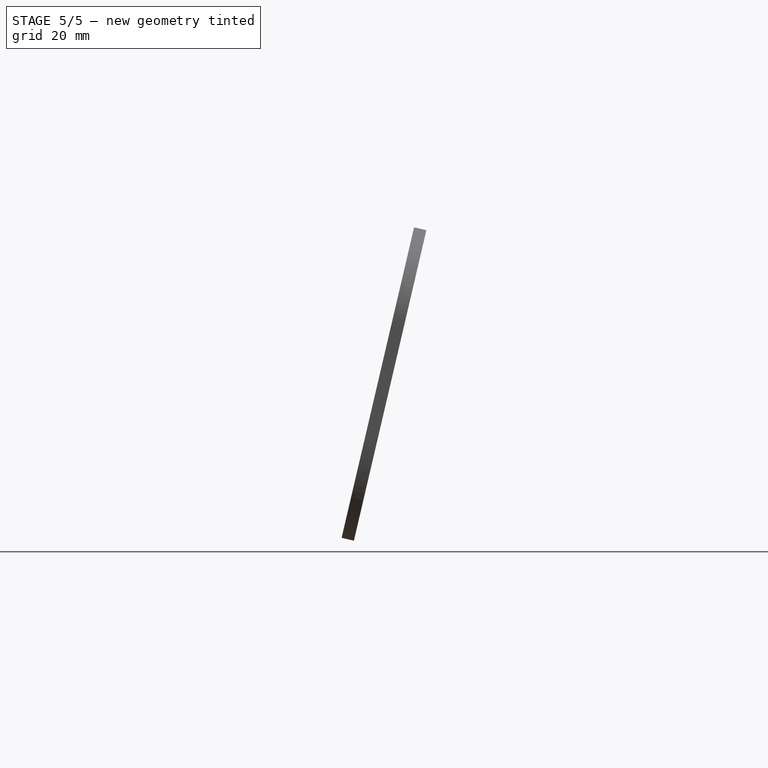
[diagram: stage 5 of 5 — right view after this stage's code; geometry added in this stage tinted green]
FEATURE [Sketcher::SketchObject] Sketch009
  ExternalGeometry = -> [Binder004]
  FullyConstrained = true
  MapMode = 5
  Placement = pos=(-8.9e-15,-37.822,8.80531) rot=(0,0.783363,0.621564;3.14159rad)
  Support = -> [Hole002]
  sketch-geometry (3):
    g0: GeomPoint X=0 Y=-9.74291 Z=0
    g1: Circle CenterX=-2.6 CenterY=-9.74291 CenterZ=0 NormalX=0 NormalY=0 NormalZ=1 AngleXU=0 Radius=0.9
    g2: Circle CenterX=-7.8 CenterY=-9.74291 CenterZ=0 NormalX=0 NormalY=0 NormalZ=1 AngleXU=0 Radius=0.9
  constraints (8):
    c: PointOnObject(g0,g-2)
    c: DistanceY(g-3,g0) = 12
    c: Equal(g2,g1)
    c: Diameter(g2) = 1.8
    c: Horizontal(g2,g1)
    c: Horizontal(g1,g0)
    c: DistanceX(g2,g1) = 5.2
    c: DistanceX(g1,g0) = 2.6
FEATURE [PartDesign::Pocket] Pocket003
  BaseFeature = -> Hole002
  Direction = (-2e-16,-0.973821,0.227315)
  Length = 5
  Length2 = 5
  Placement = pos=(0,-0.1,0) rot=(0,0,1;0rad)
  Profile = -> Sketch009
  ReferenceAxis = -> Sketch009 [N_Axis]
  Type = 1
FEATURE [Sketcher::SketchObject] Sketch007
  ExternalGeometry = -> [Binder004,Pocket003]
  FullyConstrained = true
  MapMode = 5
  Placement = pos=(-8.9e-15,-37.822,8.80531) rot=(0,0.783363,0.621564;3.14159rad)
  Support = -> [Pocket003]
  sketch-geometry (21):
    g0: LineSegment StartX=-47.55 StartY=20.8071 StartZ=0 EndX=-47.55 EndY=8.70709 EndZ=0
    g1: LineSegment StartX=-47.55 StartY=8.70709 StartZ=0 EndX=-37.45 EndY=8.70709 EndZ=0
    g2: LineSegment StartX=-37.45 StartY=8.70709 StartZ=0 EndX=-37.45 EndY=20.8071 EndZ=0
    g3: LineSegment StartX=-37.45 StartY=20.8071 StartZ=0 EndX=-47.55 EndY=20.8071 EndZ=0
    g4: GeomPoint X=-42.5 Y=14.7571 Z=0
    g5: LineSegment StartX=-68.55 StartY=22.8071 StartZ=0 EndX=-68.55 EndY=12.7071 EndZ=0
    g6: LineSegment StartX=-68.55 StartY=12.7071 StartZ=0 EndX=-56.45 EndY=12.7071 EndZ=0
    g7: LineSegment StartX=-56.45 StartY=12.7071 StartZ=0 EndX=-56.45 EndY=22.8071 EndZ=0
    g8: LineSegment StartX=-56.45 StartY=22.8071 StartZ=0 EndX=-68.55 EndY=22.8071 EndZ=0
    g9: GeomPoint X=-62.5 Y=17.7571 Z=0
    g10: LineSegment StartX=-55.05 StartY=41.3071 StartZ=0 EndX=-55.05 EndY=31.2071 EndZ=0
    g11: LineSegment StartX=-55.05 StartY=31.2071 StartZ=0 EndX=-42.95 EndY=31.2071 EndZ=0
    g12: LineSegment StartX=-42.95 StartY=31.2071 StartZ=0 EndX=-42.95 EndY=41.3071 EndZ=0
    g13: LineSegment StartX=-42.95 StartY=41.3071 StartZ=0 EndX=-55.05 EndY=41.3071 EndZ=0
    g14: GeomPoint X=-49 Y=36.2571 Z=0
    g15: LineSegment StartX=-33.55 StartY=38.5071 StartZ=0 EndX=-33.55 EndY=28.4071 EndZ=0
    g16: LineSegment StartX=-33.55 StartY=28.4071 StartZ=0 EndX=-21.45 EndY=28.4071 EndZ=0
    g17: LineSegment StartX=-21.45 StartY=28.4071 StartZ=0 EndX=-21.45 EndY=38.5071 EndZ=0
    g18: LineSegment StartX=-21.45 StartY=38.5071 StartZ=0 EndX=-33.55 EndY=38.5071 EndZ=0
    g19: GeomPoint X=-27.5 Y=33.4571 Z=0
    g20: GeomPoint X=0 Y=-9.74291 Z=0
  constraints (54):
    c: Coincident(g0,g1)
    c: Coincident(g1,g2)
    c: Coincident(g2,g3)
    c: Coincident(g3,g0)
    c: Horizontal(g1)
    c: Horizontal(g3)
    c: Vertical(g0)
    c: Vertical(g2)
    c: Symmetric(g1,g0,g4)
    c: Coincident(g5,g6)
    c: Coincident(g6,g7)
    c: Coincident(g7,g8)
    c: Coincident(g8,g5)
    c: Horizontal(g6)
    c: Horizontal(g8)
    c: Vertical(g5)
    c: Vertical(g7)
    c: Symmetric(g6,g5,g9)
    c: Coincident(g10,g11)
    c: Coincident(g11,g12)
    c: Coincident(g12,g13)
    c: Coincident(g13,g10)
    c: Horizontal(g11)
    c: Horizontal(g13)
    c: Vertical(g10)
    c: Vertical(g12)
    c: Symmetric(g11,g10,g14)
    c: Coincident(g15,g16)
    c: Coincident(g16,g17)
    c: Coincident(g17,g18)
    c: Coincident(g18,g15)
    c: Horizontal(g16)
    c: Horizontal(g18)
    c: Vertical(g15)
    c: Vertical(g17)
    c: Symmetric(g16,g15,g19)
    c: Equal(g2,g16)
    c: Equal(g16,g11)
    c: Equal(g11,g8)
    c: Equal(g3,g15)
    c: Equal(g15,g12)
    c: Equal(g12,g7)
    c: DistanceY(g2,g2) = 12.1
    c: PointOnObject(g20,g-2)
    c: DistanceY(g20,g4) = 24.5
    c: DistanceY(g20,g9) = 27.5
    c: DistanceY(g20,g19) = 43.2
    c: DistanceY(g20,g14) = 46
    c: DistanceX(g4,g20) = 42.5
    c: DistanceX(g9,g20) = 62.5
    c: DistanceX(g19,g20) = 27.5
    c: DistanceX(g14,g20) = 49
    c: Horizontal(g20,g-4)
    c: DistanceX(g1,g1) = 10.1
FEATURE [PartDesign::Pocket] Pocket002
  BaseFeature = -> Pocket003
  Direction = (-2e-16,-0.973821,0.227315)
  Length = 0
  Length2 = 5
  Offset = -0.2
  Placement = pos=(0,-0.1,0) rot=(0,0,1;0rad)
  Profile = -> Sketch007
  ReferenceAxis = -> Sketch007 [N_Axis]
  Type = 3
  UpToFace = -> Pad003 [Face16]
FEATURE [PartDesign::Mirrored] Mirrored001
  BaseFeature = -> Pocket002
  MirrorPlane = -> Sketch006 [V_Axis]
  Originals = -> [Hole002,Pocket003,Pocket002]
  Placement = pos=(0,-0.1,0) rot=(0,0,1;0rad)
FEATURE [Sketcher::SketchObject] Sketch010
  ExternalGeometry = -> [Mirrored001]
  FullyConstrained = true
  MapMode = 5
  Placement = pos=(-8.9e-15,-37.822,8.80531) rot=(0,0.783363,0.621564;3.14159rad)
  Support = -> [Mirrored001]
  sketch-geometry (4):
    g0: Circle CenterX=-7.8 CenterY=-9.74291 CenterZ=0 NormalX=0 NormalY=0 NormalZ=1 AngleXU=0 Radius=1.3
    g1: Circle CenterX=-2.6 CenterY=-9.74291 CenterZ=0 NormalX=0 NormalY=0 NormalZ=1 AngleXU=0 Radius=1.3
    g2: Circle CenterX=2.6 CenterY=-9.74291 CenterZ=0 NormalX=0 NormalY=0 NormalZ=1 AngleXU=0 Radius=1.3
    g3: Circle CenterX=7.8 CenterY=-9.74291 CenterZ=0 NormalX=0 NormalY=0 NormalZ=1 AngleXU=0 Radius=1.3
  constraints (8):
    c: Coincident(g0,g-4)
    c: Coincident(g1,g-3)
    c: Coincident(g2,g-5)
    c: Coincident(g3,g-6)
    c: Equal(g3,g2)
    c: Equal(g3,g1)
    c: Equal(g3,g0)
    c: Diameter(g3) = 2.6
FEATURE [PartDesign::Pocket] Pocket004
  BaseFeature = -> Mirrored001
  Direction = (-2e-16,-0.973821,0.227315)
  Length = 2.6
  Length2 = 5
  Offset = -1
  Placement = pos=(0,-0.1,0) rot=(0,0,1;0rad)
  Profile = -> Sketch010
  ReferenceAxis = -> Sketch010 [N_Axis]
  Type = 0
FEATURE [PartDesign::Body] Body001  label="Face Panel"
  Group = -> [Binder002,Pad003,Sketch006,Binder004,Hole002,Sketch009,Pocket003,Pocket002,Sketch007,Mirrored001,Sketch010,Pocket004]
  Origin = -> Origin001
  Tip = -> Pocket004
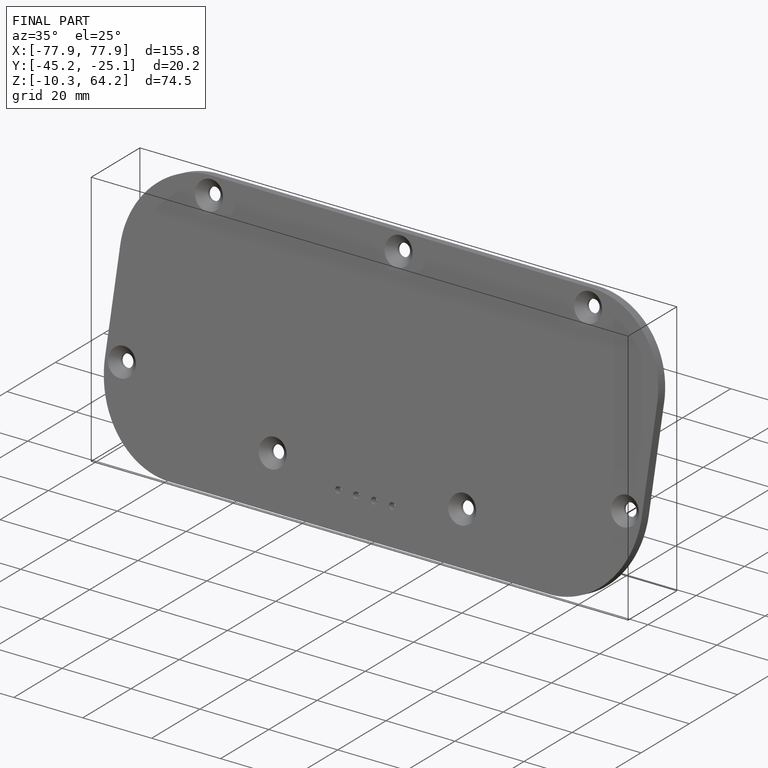
[diagram: finished part — iso view with bounding-box wireframe]
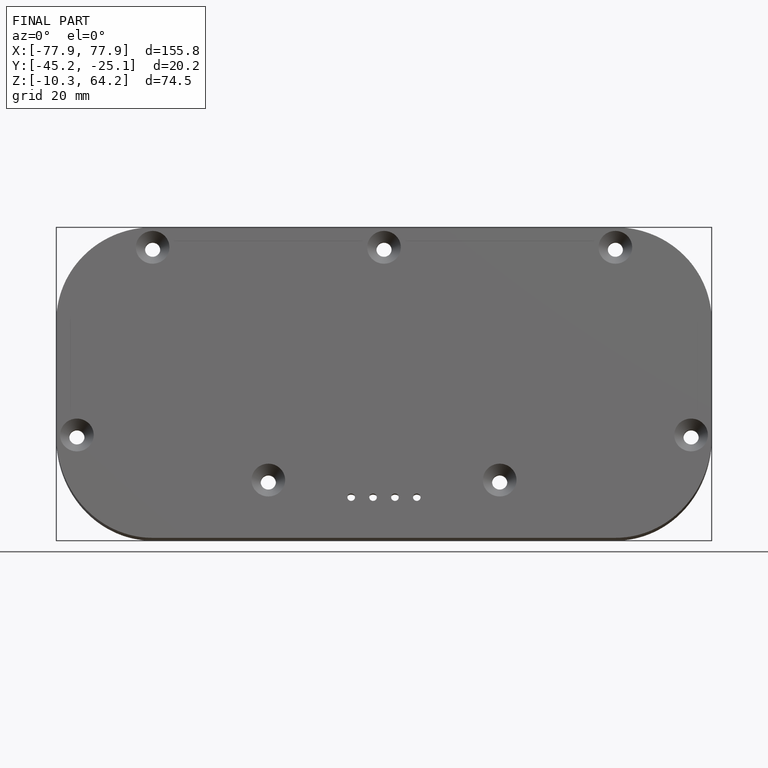
[diagram: finished part — front view with bounding-box wireframe]
